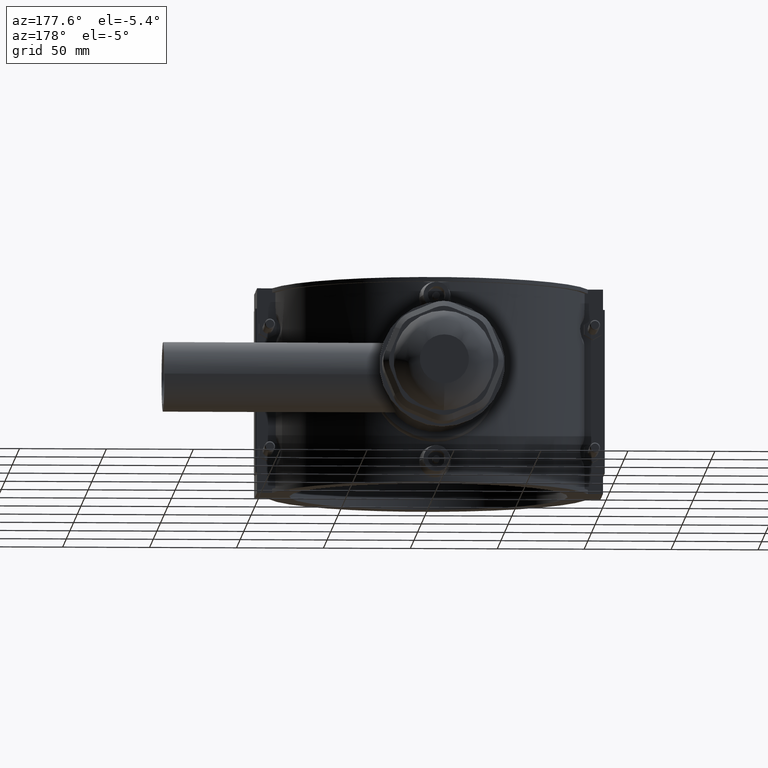
[diagram: clean part render]
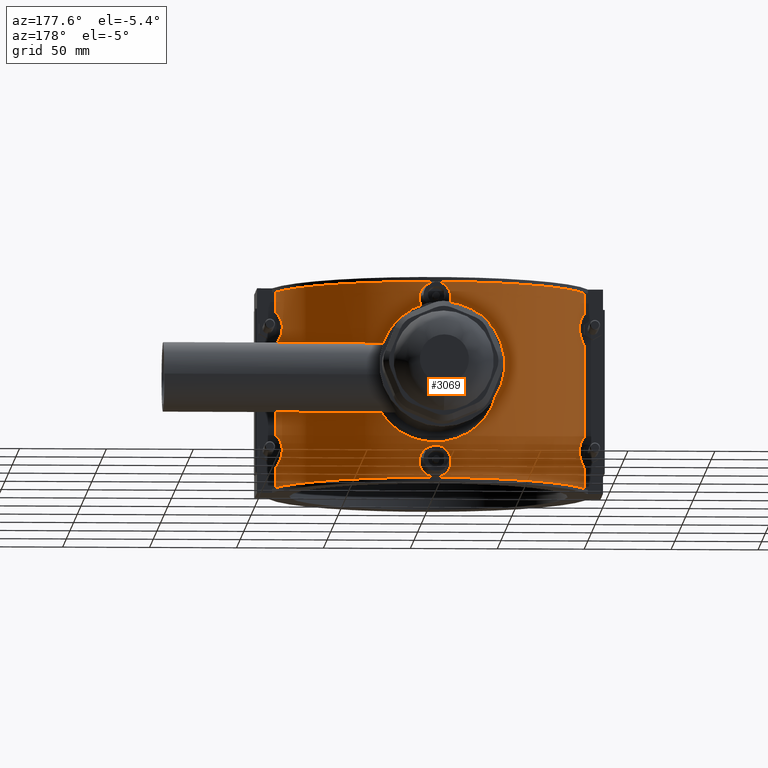
[diagram: same view with one face highlighted and labeled with its STEP entity id]
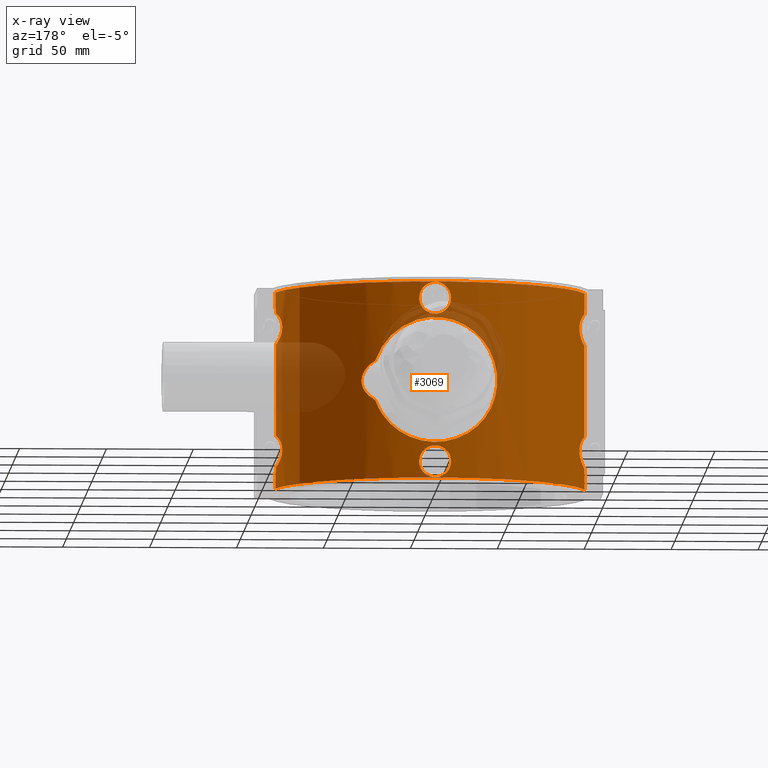
[diagram: x-ray of the same camera — body ghosted, the highlighted face saturated]
A machine part, auxiliary view. The second image highlights one B-rep face of the part: STEP entity #3069.
The next image is the same camera in x-ray: the body ghosted, the highlighted face saturated — about 13% of this face is hidden behind the body in this view.
In plain terms, the highlighted cylindrical surface (partial cylindrical patch) has radius 91.2 mm, axis along (0, 0, 1).
Its self-contained STEP definition (entity closure, byte-faithful):
#104=LINE('',#5195,#383);
#124=LINE('',#5278,#403);
#128=LINE('',#5286,#407);
#129=LINE('',#5290,#408);
#130=LINE('',#5306,#409);
#131=LINE('',#5322,#410);
#132=LINE('',#5325,#411);
#133=LINE('',#5329,#412);
#134=LINE('',#5345,#413);
#135=LINE('',#5361,#414);
#383=VECTOR('',#3716,9.43999999999998);
#403=VECTOR('',#3764,9.43999999999998);
#407=VECTOR('',#3770,9.43999999999998);
#408=VECTOR('',#3773,2.6837622247576);
#409=VECTOR('',#3774,52.5675244495152);
#410=VECTOR('',#3775,2.6837622247576);
#411=VECTOR('',#3778,9.43999999999998);
#412=VECTOR('',#3781,2.6837622247576);
#413=VECTOR('',#3782,52.5675244495152);
#414=VECTOR('',#3783,2.6837622247576);
#742=CIRCLE('',#3275,91.2);
#750=CIRCLE('',#3289,91.2);
#754=CIRCLE('',#3297,91.2);
#755=CIRCLE('',#3298,91.2);
#756=CIRCLE('',#3299,91.2);
#757=CIRCLE('',#3300,91.2);
#823=FACE_BOUND('',#1115,.T.);
#824=FACE_BOUND('',#1116,.T.);
#825=FACE_BOUND('',#1117,.T.);
#922=FACE_OUTER_BOUND('',#1114,.T.);
#1114=EDGE_LOOP('',(#2332,#2333,#2334,#2335,#2336,#2337,#2338,#2339,#2340,
#2341,#2342,#2343,#2344,#2345,#2346,#2347,#2348,#2349,#2350,#2351));
#1115=EDGE_LOOP('',(#2352,#2353));
#1116=EDGE_LOOP('',(#2354));
#1117=EDGE_LOOP('',(#2355));
#1281=B_SPLINE_CURVE_WITH_KNOTS('',3,(#4468,#4469,#4470,#4471,#4472,#4473,
#4474,#4475,#4476,#4477,#4478,#4479,#4480,#4481,#4482,#4483,#4484,#4485),
 .UNSPECIFIED.,.F.,.F.,(4,2,2,2,2,2,2,2,4),(2.16773930938593,2.74999042425556,
3.18895322151627,3.40843462014662,3.62791601877698,3.84739741740733,4.06687881603769,
4.5058416132984,5.08809272816803),.UNSPECIFIED.);
#1292=B_SPLINE_CURVE_WITH_KNOTS('',3,(#5101,#5102,#5103,#5104,#5105,#5106,
#5107,#5108,#5109,#5110,#5111,#5112,#5113,#5114,#5115,#5116,#5117,#5118,
#5119,#5120,#5121,#5122,#5123,#5124,#5125,#5126,#5127,#5128,#5129,#5130,
#5131,#5132,#5133,#5134,#5135,#5136,#5137,#5138,#5139,#5140,#5141,#5142,
#5143,#5144,#5145,#5146,#5147,#5148,#5149,#5150,#5151,#5152,#5153,#5154,
#5155,#5156,#5157,#5158,#5159,#5160,#5161,#5162),.UNSPECIFIED.,.F.,.F.,
(4,2,2,2,2,2,2,2,2,2,2,2,2,2,2,2,2,2,2,2,2,2,2,2,2,2,2,2,2,2,4),(1.12371830598308,
1.37309025133725,2.05963537700587,2.7461805026745,3.43206983416835,4.1179591656622,
4.80384849715604,5.48973782864989,6.17562716014374,6.86151649163759,7.54740582313144,
8.23329515462529,8.91984028029391,9.60638540596253,10.2929305316312,10.9794756572998,
11.6660207829684,12.352565908637,13.0391110343057,13.7256561599743,14.4115454914681,
15.097434822962,15.7833241544558,16.4692134859497,17.1551028174435,17.8409921489374,
18.5268814804312,19.2127708119251,19.8993159375937,20.5858610632623,20.8352330086165),
 .UNSPECIFIED.);
#1295=B_SPLINE_CURVE_WITH_KNOTS('',3,(#5292,#5293,#5294,#5295,#5296,#5297,
#5298,#5299,#5300,#5301,#5302,#5303,#5304),.UNSPECIFIED.,.F.,.F.,(4,1,1,
1,1,1,1,1,1,1,4),(-3.66828220203314,-3.25120389535557,-2.834125588678,-2.41704728200043,
-2.20850812866164,-1.99996897532286,-1.89569939865347,-1.79142982198407,
-1.58289066864529,-1.16581236196772,-0.74873405529015),.UNSPECIFIED.);
#1296=B_SPLINE_CURVE_WITH_KNOTS('',3,(#5308,#5309,#5310,#5311,#5312,#5313,
#5314,#5315,#5316,#5317,#5318,#5319,#5320),.UNSPECIFIED.,.F.,.F.,(4,1,1,
1,1,1,1,1,1,1,4),(-3.66828220279289,-3.25120389611031,-2.83412558942772,
-2.62558643608643,-2.52131685941578,-2.41704728274514,-2.20850812940385,
-1.99996897606255,-1.58289066937997,-1.16581236269738,-0.748734056014795),
 .UNSPECIFIED.);
#1297=B_SPLINE_CURVE_WITH_KNOTS('',3,(#5331,#5332,#5333,#5334,#5335,#5336,
#5337,#5338,#5339,#5340,#5341,#5342,#5343),.UNSPECIFIED.,.F.,.F.,(4,1,1,
1,1,1,1,1,1,1,4),(-3.66752498455638,-3.25044670413885,-2.83336842372132,
-2.41629014330378,-2.20775100309501,-1.99921186288625,-1.89494229278186,
-1.79067272267748,-1.58213358246871,-1.16505530205118,-0.747977021633643),
 .UNSPECIFIED.);
#1298=B_SPLINE_CURVE_WITH_KNOTS('',3,(#5347,#5348,#5349,#5350,#5351,#5352,
#5353,#5354,#5355,#5356,#5357,#5358,#5359),.UNSPECIFIED.,.F.,.F.,(4,1,1,
1,1,1,1,1,1,1,4),(-3.66790656687898,-3.25082827320278,-2.83374997952657,
-2.41667168585037,-2.20813253901227,-1.99959339217417,-1.89532381875512,
-1.79105424533607,-1.58251509849797,-1.16543680482177,-0.748358511145565),
 .UNSPECIFIED.);
#1299=B_SPLINE_CURVE_WITH_KNOTS('',3,(#5364,#5365,#5366,#5367,#5368,#5369,
#5370,#5371,#5372,#5373,#5374,#5375,#5376,#5377,#5378,#5379,#5380,#5381,
#5382,#5383,#5384,#5385,#5386,#5387,#5388,#5389,#5390,#5391,#5392,#5393,
#5394,#5395,#5396,#5397),.UNSPECIFIED.,.T.,.F.,(4,2,2,2,2,2,2,2,2,2,2,2,
2,2,2,2,4),(0.,0.346065054083076,0.692130108166152,1.03704234345026,1.38195457873437,
1.72686681401849,2.0717790493026,2.41784410338567,2.76390915746875,3.10957379604714,
3.45523843462554,3.80055069679235,4.14586295895917,4.49117522112599,4.8364874832928,
5.1821521218712,5.52781676044959),.UNSPECIFIED.);
#1300=B_SPLINE_CURVE_WITH_KNOTS('',3,(#5399,#5400,#5401,#5402,#5403,#5404,
#5405,#5406,#5407,#5408,#5409,#5410,#5411,#5412,#5413,#5414,#5415,#5416,
#5417,#5418,#5419,#5420,#5421,#5422,#5423,#5424,#5425,#5426,#5427,#5428,
#5429,#5430,#5431,#5432),.UNSPECIFIED.,.T.,.F.,(4,2,2,2,2,2,2,2,2,2,2,2,
2,2,2,2,4),(0.,0.346065054083076,0.692130108166152,1.03704234345026,1.38195457873438,
1.72686681401849,2.0717790493026,2.41784410338567,2.76390915746875,3.10957379604714,
3.45523843462554,3.80055069679235,4.14586295895917,4.49117522112599,4.8364874832928,
5.1821521218712,5.52781676044959),.UNSPECIFIED.);
#1337=VERTEX_POINT('',#4460);
#1338=VERTEX_POINT('',#4467);
#1404=VERTEX_POINT('',#5173);
#1405=VERTEX_POINT('',#5175);
#1412=VERTEX_POINT('',#5194);
#1432=VERTEX_POINT('',#5261);
#1433=VERTEX_POINT('',#5263);
#1437=VERTEX_POINT('',#5277);
#1440=VERTEX_POINT('',#5285);
#1441=VERTEX_POINT('',#5287);
#1442=VERTEX_POINT('',#5289);
#1443=VERTEX_POINT('',#5291);
#1444=VERTEX_POINT('',#5305);
#1445=VERTEX_POINT('',#5307);
#1446=VERTEX_POINT('',#5321);
#1447=VERTEX_POINT('',#5324);
#1448=VERTEX_POINT('',#5326);
#1449=VERTEX_POINT('',#5328);
#1450=VERTEX_POINT('',#5330);
#1451=VERTEX_POINT('',#5344);
#1452=VERTEX_POINT('',#5346);
#1453=VERTEX_POINT('',#5360);
#1454=VERTEX_POINT('',#5363);
#1455=VERTEX_POINT('',#5398);
#1632=EDGE_CURVE('',#1338,#1337,#1281,.T.);
#1731=EDGE_CURVE('',#1337,#1338,#1292,.T.);
#1738=EDGE_CURVE('',#1404,#1405,#742,.T.);
#1746=EDGE_CURVE('',#1412,#1404,#104,.T.);
#1769=EDGE_CURVE('',#1433,#1432,#750,.T.);
#1776=EDGE_CURVE('',#1433,#1437,#124,.T.);
#1780=EDGE_CURVE('',#1440,#1405,#128,.T.);
#1781=EDGE_CURVE('',#1440,#1441,#754,.T.);
#1782=EDGE_CURVE('',#1441,#1442,#129,.T.);
#1783=EDGE_CURVE('',#1443,#1442,#1295,.T.);
#1784=EDGE_CURVE('',#1443,#1444,#130,.T.);
#1785=EDGE_CURVE('',#1445,#1444,#1296,.T.);
#1786=EDGE_CURVE('',#1445,#1446,#131,.T.);
#1787=EDGE_CURVE('',#1446,#1437,#755,.T.);
#1788=EDGE_CURVE('',#1432,#1447,#132,.T.);
#1789=EDGE_CURVE('',#1447,#1448,#756,.T.);
#1790=EDGE_CURVE('',#1448,#1449,#133,.T.);
#1791=EDGE_CURVE('',#1450,#1449,#1297,.T.);
#1792=EDGE_CURVE('',#1450,#1451,#134,.T.);
#1793=EDGE_CURVE('',#1452,#1451,#1298,.T.);
#1794=EDGE_CURVE('',#1452,#1453,#135,.T.);
#1795=EDGE_CURVE('',#1453,#1412,#757,.T.);
#1796=EDGE_CURVE('',#1454,#1454,#1299,.T.);
#1797=EDGE_CURVE('',#1455,#1455,#1300,.T.);
#2332=ORIENTED_EDGE('',*,*,#1738,.T.);
#2333=ORIENTED_EDGE('',*,*,#1780,.F.);
#2334=ORIENTED_EDGE('',*,*,#1781,.T.);
#2335=ORIENTED_EDGE('',*,*,#1782,.T.);
#2336=ORIENTED_EDGE('',*,*,#1783,.F.);
#2337=ORIENTED_EDGE('',*,*,#1784,.T.);
#2338=ORIENTED_EDGE('',*,*,#1785,.F.);
#2339=ORIENTED_EDGE('',*,*,#1786,.T.);
#2340=ORIENTED_EDGE('',*,*,#1787,.T.);
#2341=ORIENTED_EDGE('',*,*,#1776,.F.);
#2342=ORIENTED_EDGE('',*,*,#1769,.T.);
#2343=ORIENTED_EDGE('',*,*,#1788,.T.);
#2344=ORIENTED_EDGE('',*,*,#1789,.T.);
#2345=ORIENTED_EDGE('',*,*,#1790,.T.);
#2346=ORIENTED_EDGE('',*,*,#1791,.F.);
#2347=ORIENTED_EDGE('',*,*,#1792,.T.);
#2348=ORIENTED_EDGE('',*,*,#1793,.F.);
#2349=ORIENTED_EDGE('',*,*,#1794,.T.);
#2350=ORIENTED_EDGE('',*,*,#1795,.T.);
#2351=ORIENTED_EDGE('',*,*,#1746,.T.);
#2352=ORIENTED_EDGE('',*,*,#1632,.T.);
#2353=ORIENTED_EDGE('',*,*,#1731,.T.);
#2354=ORIENTED_EDGE('',*,*,#1796,.T.);
#2355=ORIENTED_EDGE('',*,*,#1797,.T.);
#2983=CYLINDRICAL_SURFACE('',#3296,91.2);
#3069=ADVANCED_FACE('',(#922,#823,#824,#825),#2983,.T.);
#3275=AXIS2_PLACEMENT_3D('',#5177,#3698,#3699);
#3289=AXIS2_PLACEMENT_3D('',#5264,#3747,#3748);
#3296=AXIS2_PLACEMENT_3D('',#5284,#3768,#3769);
#3297=AXIS2_PLACEMENT_3D('',#5288,#3771,#3772);
#3298=AXIS2_PLACEMENT_3D('',#5323,#3776,#3777);
#3299=AXIS2_PLACEMENT_3D('',#5327,#3779,#3780);
#3300=AXIS2_PLACEMENT_3D('',#5362,#3784,#3785);
#3698=DIRECTION('center_axis',(0.,0.,1.));
#3699=DIRECTION('ref_axis',(1.,0.,0.));
#3716=DIRECTION('',(0.,0.,-1.));
#3747=DIRECTION('center_axis',(0.,0.,-1.));
#3748=DIRECTION('ref_axis',(1.,0.,0.));
#3764=DIRECTION('',(0.,0.,-1.));
#3768=DIRECTION('center_axis',(0.,0.,1.));
#3769=DIRECTION('ref_axis',(1.,0.,0.));
#3770=DIRECTION('',(0.,0.,-1.));
#3771=DIRECTION('center_axis',(0.,0.,-1.));
#3772=DIRECTION('ref_axis',(1.,0.,0.));
#3773=DIRECTION('',(0.,0.,1.));
#3774=DIRECTION('',(0.,0.,1.));
#3775=DIRECTION('',(0.,0.,1.));
#3776=DIRECTION('center_axis',(0.,0.,1.));
#3777=DIRECTION('ref_axis',(1.,0.,0.));
#3778=DIRECTION('',(0.,0.,-1.));
#3779=DIRECTION('center_axis',(0.,0.,1.));
#3780=DIRECTION('ref_axis',(1.,0.,0.));
#3781=DIRECTION('',(0.,0.,-1.));
#3782=DIRECTION('',(0.,0.,-1.));
#3783=DIRECTION('',(0.,0.,-1.));
#3784=DIRECTION('center_axis',(0.,0.,-1.));
#3785=DIRECTION('ref_axis',(1.,0.,0.));
#4460=CARTESIAN_POINT('',(34.1480181069357,84.565671876782,11.3979322384374));
#4467=CARTESIAN_POINT('',(34.1480181069357,84.565671876782,-11.3979322384374));
#4468=CARTESIAN_POINT('Ctrl Pts',(34.1480181010318,84.5656718755998,-11.3979322291172));
#4469=CARTESIAN_POINT('Ctrl Pts',(35.7509251939001,83.9184104135013,-10.4646658228447));
#4470=CARTESIAN_POINT('Ctrl Pts',(37.2202513829612,83.2709242500236,-9.37234060159409));
#4471=CARTESIAN_POINT('Ctrl Pts',(39.442910339603,82.2362900015375,-7.0108049044086));
#4472=CARTESIAN_POINT('Ctrl Pts',(40.3425202878254,81.7948625282587,-5.76021854635653));
#4473=CARTESIAN_POINT('Ctrl Pts',(41.2695126129152,81.328881136464,-3.68123314534437));
#4474=CARTESIAN_POINT('Ctrl Pts',(41.5106557579243,81.2055285389094,-2.95455904855121));
#4475=CARTESIAN_POINT('Ctrl Pts',(41.8309120791658,81.0410217185789,-1.47976542870611));
#4476=CARTESIAN_POINT('Ctrl Pts',(41.9099033642408,81.,-0.731604662101183));
#4477=CARTESIAN_POINT('Ctrl Pts',(41.9099033642408,81.,0.731604662101183));
#4478=CARTESIAN_POINT('Ctrl Pts',(41.8309120791658,81.0410217185789,1.47976542870611));
#4479=CARTESIAN_POINT('Ctrl Pts',(41.5106557579243,81.2055285389094,2.95455904855121));
#4480=CARTESIAN_POINT('Ctrl Pts',(41.2695126129152,81.328881136464,3.68123314534437));
#4481=CARTESIAN_POINT('Ctrl Pts',(40.3425202878254,81.7948625282587,5.76021854635653));
#4482=CARTESIAN_POINT('Ctrl Pts',(39.442910339603,82.2362900015375,7.0108049044086));
#4483=CARTESIAN_POINT('Ctrl Pts',(37.2202513829612,83.2709242500236,9.37234060159409));
#4484=CARTESIAN_POINT('Ctrl Pts',(35.7509251939001,83.9184104135013,10.4646658228447));
#4485=CARTESIAN_POINT('Ctrl Pts',(34.1480181010318,84.5656718755998,11.3979322291172));
#5101=CARTESIAN_POINT('Ctrl Pts',(34.1480181069357,84.5656718732157,11.3979322409108));
#5102=CARTESIAN_POINT('Ctrl Pts',(33.87206779495,84.677101913817,12.2246748509851));
#5103=CARTESIAN_POINT('Ctrl Pts',(33.5659141235298,84.7991672320356,13.0417652002615));
#5104=CARTESIAN_POINT('Ctrl Pts',(32.3089969863221,85.2909661590028,16.0585197891704));
#5105=CARTESIAN_POINT('Ctrl Pts',(31.165128157779,85.7211596850742,18.1737058126692));
#5106=CARTESIAN_POINT('Ctrl Pts',(28.5312190227312,86.6334344901436,22.0798174282098));
#5107=CARTESIAN_POINT('Ctrl Pts',(27.0409117744509,87.1146015822262,23.8707764709805));
#5108=CARTESIAN_POINT('Ctrl Pts',(23.8722905420791,88.0356363061712,27.0393977033523));
#5109=CARTESIAN_POINT('Ctrl Pts',(22.0820581770992,88.5089443739233,28.5295125553873));
#5110=CARTESIAN_POINT('Ctrl Pts',(18.175570321976,89.3929481051351,31.1640662251688));
#5111=CARTESIAN_POINT('Ctrl Pts',(16.0592786454413,89.8028802983963,32.3087075032088));
#5112=CARTESIAN_POINT('Ctrl Pts',(11.6311420538677,90.4830054539145,34.1536171739742));
#5113=CARTESIAN_POINT('Ctrl Pts',(9.31533034190696,90.7532620314227,34.8553518612118));
#5114=CARTESIAN_POINT('Ctrl Pts',(4.64294395213267,91.1118709070611,35.7786808619193));
#5115=CARTESIAN_POINT('Ctrl Pts',(2.28629777164616,91.2,36.));
#5116=CARTESIAN_POINT('Ctrl Pts',(-2.28629777164616,91.2,36.));
#5117=CARTESIAN_POINT('Ctrl Pts',(-4.64294395213267,91.1118709070611,35.7786808619193));
#5118=CARTESIAN_POINT('Ctrl Pts',(-9.31533034190696,90.7532620314227,34.8553518612118));
#5119=CARTESIAN_POINT('Ctrl Pts',(-11.6311420538677,90.4830054539146,34.1536171739742));
#5120=CARTESIAN_POINT('Ctrl Pts',(-16.0592786454413,89.8028802983963,32.3087075032088));
#5121=CARTESIAN_POINT('Ctrl Pts',(-18.175570321976,89.3929481051351,31.1640662251688));
#5122=CARTESIAN_POINT('Ctrl Pts',(-22.0820581770992,88.5089443739233,28.5295125553873));
#5123=CARTESIAN_POINT('Ctrl Pts',(-23.8722905420791,88.0356363061712,27.0393977033523));
#5124=CARTESIAN_POINT('Ctrl Pts',(-27.0409117744509,87.1146015822262,23.8707764709805));
#5125=CARTESIAN_POINT('Ctrl Pts',(-28.5312190227312,86.6334344901436,22.0798174282098));
#5126=CARTESIAN_POINT('Ctrl Pts',(-31.165128157779,85.7211596850742,18.1737058126692));
#5127=CARTESIAN_POINT('Ctrl Pts',(-32.308996986322,85.2909661590028,16.0585197891704));
#5128=CARTESIAN_POINT('Ctrl Pts',(-34.1530286011665,84.5694446341323,11.6326187719137));
#5129=CARTESIAN_POINT('Ctrl Pts',(-34.8546532313024,84.2783723591541,9.31790553277572));
#5130=CARTESIAN_POINT('Ctrl Pts',(-35.7782887978466,83.8904342023092,4.64588694301194));
#5131=CARTESIAN_POINT('Ctrl Pts',(-36.,83.7940332004612,2.28848375222875));
#5132=CARTESIAN_POINT('Ctrl Pts',(-36.,83.7940332004612,-2.28848375222875));
#5133=CARTESIAN_POINT('Ctrl Pts',(-35.7782887978466,83.8904342023092,-4.64588694301195));
#5134=CARTESIAN_POINT('Ctrl Pts',(-34.8546532313024,84.2783723591541,-9.31790553277572));
#5135=CARTESIAN_POINT('Ctrl Pts',(-34.1530286011665,84.5694446341323,-11.6326187719137));
#5136=CARTESIAN_POINT('Ctrl Pts',(-32.3089969863221,85.2909661590028,-16.0585197891704));
#5137=CARTESIAN_POINT('Ctrl Pts',(-31.165128157779,85.7211596850742,-18.1737058126692));
#5138=CARTESIAN_POINT('Ctrl Pts',(-28.5312190227312,86.6334344901436,-22.0798174282098));
#5139=CARTESIAN_POINT('Ctrl Pts',(-27.0409117744509,87.1146015822262,-23.8707764709805));
#5140=CARTESIAN_POINT('Ctrl Pts',(-23.8722905420791,88.0356363061712,-27.0393977033523));
#5141=CARTESIAN_POINT('Ctrl Pts',(-22.0820581770992,88.5089443739233,-28.5295125553873));
#5142=CARTESIAN_POINT('Ctrl Pts',(-18.175570321976,89.3929481051351,-31.1640662251687));
#5143=CARTESIAN_POINT('Ctrl Pts',(-16.0592786454413,89.8028802983963,-32.3087075032088));
#5144=CARTESIAN_POINT('Ctrl Pts',(-11.6311420538677,90.4830054539145,-34.1536171739742));
#5145=CARTESIAN_POINT('Ctrl Pts',(-9.31533034190696,90.7532620314227,-34.8553518612118));
#5146=CARTESIAN_POINT('Ctrl Pts',(-4.64294395213267,91.1118709070611,-35.7786808619193));
#5147=CARTESIAN_POINT('Ctrl Pts',(-2.28629777164616,91.2,-36.));
#5148=CARTESIAN_POINT('Ctrl Pts',(2.28629777164615,91.2,-36.));
#5149=CARTESIAN_POINT('Ctrl Pts',(4.64294395213266,91.1118709070611,-35.7786808619193));
#5150=CARTESIAN_POINT('Ctrl Pts',(9.31533034190694,90.7532620314227,-34.8553518612118));
#5151=CARTESIAN_POINT('Ctrl Pts',(11.6311420538677,90.4830054539146,-34.1536171739742));
#5152=CARTESIAN_POINT('Ctrl Pts',(16.0592786454413,89.8028802983963,-32.3087075032089));
#5153=CARTESIAN_POINT('Ctrl Pts',(18.1755703219759,89.3929481051352,-31.1640662251688));
#5154=CARTESIAN_POINT('Ctrl Pts',(22.0820581770992,88.5089443739233,-28.5295125553873));
#5155=CARTESIAN_POINT('Ctrl Pts',(23.8722905420791,88.0356363061712,-27.0393977033523));
#5156=CARTESIAN_POINT('Ctrl Pts',(27.0409117744509,87.1146015822262,-23.8707764709805));
#5157=CARTESIAN_POINT('Ctrl Pts',(28.5312190227312,86.6334344901436,-22.0798174282098));
#5158=CARTESIAN_POINT('Ctrl Pts',(31.165128157779,85.7211596850742,-18.1737058126692));
#5159=CARTESIAN_POINT('Ctrl Pts',(32.308996986322,85.2909661590028,-16.0585197891704));
#5160=CARTESIAN_POINT('Ctrl Pts',(33.5659141235298,84.7991672320356,-13.0417652002616));
#5161=CARTESIAN_POINT('Ctrl Pts',(33.87206779495,84.677101913817,-12.2246748509852));
#5162=CARTESIAN_POINT('Ctrl Pts',(34.1480181069357,84.5656718732157,-11.3979322409108));
#5173=CARTESIAN_POINT('',(88.9799977523039,20.,-56.64));
#5175=CARTESIAN_POINT('',(-88.9799977523038,20.,-56.64));
#5177=CARTESIAN_POINT('Origin',(0.,0.,-56.64));
#5194=CARTESIAN_POINT('',(88.9799977523039,20.0000000000001,-47.2));
#5195=CARTESIAN_POINT('',(88.9799977523039,20.,0.));
#5261=CARTESIAN_POINT('',(88.9799977523039,20.,56.64));
#5263=CARTESIAN_POINT('',(-88.9799977523038,20.,56.64));
#5264=CARTESIAN_POINT('Origin',(0.,0.,56.64));
#5277=CARTESIAN_POINT('',(-88.9799977523039,20.0000000000001,47.2));
#5278=CARTESIAN_POINT('',(-88.9799977523039,20.,0.));
#5284=CARTESIAN_POINT('Origin',(0.,0.,0.));
#5285=CARTESIAN_POINT('',(-88.9799977523039,20.0000000000001,-47.2));
#5286=CARTESIAN_POINT('',(-88.9799977523039,20.,0.));
#5287=CARTESIAN_POINT('',(-88.7493098564715,21.0000000000001,-47.2));
#5288=CARTESIAN_POINT('Origin',(0.,0.,-47.2));
#5289=CARTESIAN_POINT('',(-88.7493098564717,20.9999999999999,-44.5162377752424));
#5290=CARTESIAN_POINT('',(-88.7493098564715,21.0000000000001,0.));
#5291=CARTESIAN_POINT('',(-88.7493098564717,20.9999999999999,-26.2837622247576));
#5292=CARTESIAN_POINT('Ctrl Pts',(-88.7493098564716,20.9999999999998,-26.2837622247576));
#5293=CARTESIAN_POINT('Ctrl Pts',(-88.4149610321497,22.4130108290423,-26.7031944886741));
#5294=CARTESIAN_POINT('Ctrl Pts',(-87.6880283524837,25.1778858795364,-27.7019998941576));
#5295=CARTESIAN_POINT('Ctrl Pts',(-86.5191530163603,28.9202769505524,-29.8675123195208));
#5296=CARTESIAN_POINT('Ctrl Pts',(-85.6624055693339,31.302440321372,-32.6165160159839));
#5297=CARTESIAN_POINT('Ctrl Pts',(-85.4450160840425,31.8828234819035,-35.4034157396157));
#5298=CARTESIAN_POINT('Ctrl Pts',(-85.5804054683402,31.5211844573056,-37.1350507092045));
#5299=CARTESIAN_POINT('Ctrl Pts',(-85.8086579672526,30.8938156936346,-38.3885455088592));
#5300=CARTESIAN_POINT('Ctrl Pts',(-86.0964994057414,30.0864758921458,-39.5423015931259));
#5301=CARTESIAN_POINT('Ctrl Pts',(-86.7095183162258,28.3065863800305,-41.2859130199106));
#5302=CARTESIAN_POINT('Ctrl Pts',(-87.691542085464,25.1700252587432,-43.1022328851723));
#5303=CARTESIAN_POINT('Ctrl Pts',(-88.4149610321497,22.4130108290423,-44.096805511326));
#5304=CARTESIAN_POINT('Ctrl Pts',(-88.7493098564716,20.9999999999998,-44.5162377752424));
#5305=CARTESIAN_POINT('',(-88.7493098564717,20.9999999999999,26.2837622247576));
#5306=CARTESIAN_POINT('',(-88.7493098564715,21.0000000000001,0.));
#5307=CARTESIAN_POINT('',(-88.7493098564717,20.9999999999999,44.5162377752424));
#5308=CARTESIAN_POINT('Ctrl Pts',(-88.7493098564716,20.9999999999998,44.5162377752423));
#5309=CARTESIAN_POINT('Ctrl Pts',(-88.4149610330286,22.4130108253278,44.0968055124285));
#5310=CARTESIAN_POINT('Ctrl Pts',(-87.6915420860673,25.1700252569293,43.1022328863481));
#5311=CARTESIAN_POINT('Ctrl Pts',(-86.7095183161227,28.3065863803371,41.2859130197395));
#5312=CARTESIAN_POINT('Ctrl Pts',(-86.0964994057748,30.0864758920522,39.5423015932371));
#5313=CARTESIAN_POINT('Ctrl Pts',(-85.8086579672407,30.893815693674,38.3885455088886));
#5314=CARTESIAN_POINT('Ctrl Pts',(-85.5804054683343,31.5211844573247,37.1350507091815));
#5315=CARTESIAN_POINT('Ctrl Pts',(-85.4450160840051,31.8828234820182,35.4034157396783));
#5316=CARTESIAN_POINT('Ctrl Pts',(-85.6624055693633,31.3024403212867,32.6165160158946));
#5317=CARTESIAN_POINT('Ctrl Pts',(-86.5191530161485,28.9202769511961,29.8675123198506));
#5318=CARTESIAN_POINT('Ctrl Pts',(-87.6880283530886,25.1778858777117,27.7019998930204));
#5319=CARTESIAN_POINT('Ctrl Pts',(-88.4149610330286,22.4130108253279,26.7031944875715));
#5320=CARTESIAN_POINT('Ctrl Pts',(-88.7493098564716,20.9999999999998,26.2837622247576));
#5321=CARTESIAN_POINT('',(-88.7493098564715,21.0000000000001,47.2));
#5322=CARTESIAN_POINT('',(-88.7493098564715,21.0000000000001,0.));
#5323=CARTESIAN_POINT('Origin',(0.,0.,47.2));
#5324=CARTESIAN_POINT('',(88.9799977523039,20.0000000000001,47.2));
#5325=CARTESIAN_POINT('',(88.9799977523039,20.,0.));
#5326=CARTESIAN_POINT('',(88.7493098564715,21.0000000000001,47.2));
#5327=CARTESIAN_POINT('Origin',(0.,0.,47.2));
#5328=CARTESIAN_POINT('',(88.7493098564717,20.9999999999999,44.5162377752424));
#5329=CARTESIAN_POINT('',(88.7493098564715,21.0000000000001,0.));
#5330=CARTESIAN_POINT('',(88.7493098564717,20.9999999999999,26.2837622247576));
#5331=CARTESIAN_POINT('Ctrl Pts',(88.7493098564716,20.9999999999998,26.2837622247576));
#5332=CARTESIAN_POINT('Ctrl Pts',(88.4149611650864,22.4130102672308,26.7031943219082));
#5333=CARTESIAN_POINT('Ctrl Pts',(87.6880281127537,25.1778867747982,27.7020002347816));
#5334=CARTESIAN_POINT('Ctrl Pts',(86.5191529289145,28.9202771409652,29.8675125804049));
#5335=CARTESIAN_POINT('Ctrl Pts',(85.6624055404448,31.3024404085867,32.6165161958967));
#5336=CARTESIAN_POINT('Ctrl Pts',(85.4450160933639,31.8828234478234,35.4034157393931));
#5337=CARTESIAN_POINT('Ctrl Pts',(85.5804054544134,31.5211844964487,37.1350505984411));
#5338=CARTESIAN_POINT('Ctrl Pts',(85.8086579307241,30.8938157915859,38.3885453381319));
#5339=CARTESIAN_POINT('Ctrl Pts',(86.0964993346629,30.0864760996624,39.5423013659968));
#5340=CARTESIAN_POINT('Ctrl Pts',(86.7095182095769,28.3065866754566,41.2859127627844));
#5341=CARTESIAN_POINT('Ctrl Pts',(87.6915418476083,25.1700261338185,43.1022325374696));
#5342=CARTESIAN_POINT('Ctrl Pts',(88.4149611650864,22.4130102672308,44.0968056780918));
#5343=CARTESIAN_POINT('Ctrl Pts',(88.7493098564716,20.9999999999998,44.5162377752424));
#5344=CARTESIAN_POINT('',(88.7493098564717,20.9999999999999,-26.2837622247576));
#5345=CARTESIAN_POINT('',(88.7493098564715,21.0000000000001,0.));
#5346=CARTESIAN_POINT('',(88.7493098564717,20.9999999999999,-44.5162377752424));
#5347=CARTESIAN_POINT('Ctrl Pts',(88.7493098564716,20.9999999999998,-44.5162377752424));
#5348=CARTESIAN_POINT('Ctrl Pts',(88.4149610985497,22.4130105484257,-44.096805594623));
#5349=CARTESIAN_POINT('Ctrl Pts',(87.6880282422707,25.1778863008158,-43.0979999331056));
#5350=CARTESIAN_POINT('Ctrl Pts',(86.5191529875693,28.9202770076708,-40.9324876111118));
#5351=CARTESIAN_POINT('Ctrl Pts',(85.6624056223097,31.3024402068319,-38.1834840623287));
#5352=CARTESIAN_POINT('Ctrl Pts',(85.4450161242982,31.8828233802715,-35.3965843784854));
#5353=CARTESIAN_POINT('Ctrl Pts',(85.5804054869423,31.5211844154478,-33.6649494543955));
#5354=CARTESIAN_POINT('Ctrl Pts',(85.808657968559,30.8938156951858,-32.4114546738169));
#5355=CARTESIAN_POINT('Ctrl Pts',(86.0964993859236,30.0864759569152,-31.2576986115477));
#5356=CARTESIAN_POINT('Ctrl Pts',(86.7095182786285,28.3065864901469,-29.5140871907144));
#5357=CARTESIAN_POINT('Ctrl Pts',(87.6915419574416,25.1700257100879,-27.6977673293898));
#5358=CARTESIAN_POINT('Ctrl Pts',(88.4149610985496,22.4130105484257,-26.703194405377));
#5359=CARTESIAN_POINT('Ctrl Pts',(88.7493098564716,20.9999999999998,-26.2837622247577));
#5360=CARTESIAN_POINT('',(88.7493098564715,21.0000000000001,-47.2));
#5361=CARTESIAN_POINT('',(88.7493098564715,21.0000000000001,0.));
#5362=CARTESIAN_POINT('Origin',(0.,0.,-47.2));
#5363=CARTESIAN_POINT('',(9.18535871939005,90.7362616884569,-47.2));
#5364=CARTESIAN_POINT('Ctrl Pts',(9.18535871939005,90.7362616884569,-47.2));
#5365=CARTESIAN_POINT('Ctrl Pts',(9.18535871939005,90.7362616884569,-46.0464498197231));
#5366=CARTESIAN_POINT('Ctrl Pts',(8.95271060001911,90.7607479368476,-44.8172530720308));
#5367=CARTESIAN_POINT('Ctrl Pts',(8.00941505919708,90.8488506341557,-42.5592810057039));
#5368=CARTESIAN_POINT('Ctrl Pts',(7.29884239188916,90.9111644020812,-41.5304238181904));
#5369=CARTESIAN_POINT('Ctrl Pts',(5.66508973086934,91.0275518498036,-39.9110715030919));
#5370=CARTESIAN_POINT('Ctrl Pts',(4.63386079845111,91.0892061742376,-39.2111731607874));
#5371=CARTESIAN_POINT('Ctrl Pts',(2.37619622321046,91.1760376342106,-38.2832359769919));
#5372=CARTESIAN_POINT('Ctrl Pts',(1.14970745094704,91.2,-38.0552131257126));
#5373=CARTESIAN_POINT('Ctrl Pts',(-1.14970745094704,91.2,-38.0552131257126));
#5374=CARTESIAN_POINT('Ctrl Pts',(-2.37619622321046,91.1760376342106,-38.2832359769919));
#5375=CARTESIAN_POINT('Ctrl Pts',(-4.63386079845111,91.0892061742376,-39.2111731607874));
#5376=CARTESIAN_POINT('Ctrl Pts',(-5.66508973086934,91.0275518498036,-39.9110715030919));
#5377=CARTESIAN_POINT('Ctrl Pts',(-7.29884239188916,90.9111644020812,-41.5304238181904));
#5378=CARTESIAN_POINT('Ctrl Pts',(-8.00941505919708,90.8488506341557,-42.5592810057039));
#5379=CARTESIAN_POINT('Ctrl Pts',(-8.95271060001911,90.7607479368476,-44.8172530720308));
#5380=CARTESIAN_POINT('Ctrl Pts',(-9.18535871939005,90.7362616884569,-46.0464498197231));
#5381=CARTESIAN_POINT('Ctrl Pts',(-9.18535871939005,90.7362616884569,-48.352215461928));
#5382=CARTESIAN_POINT('Ctrl Pts',(-8.95324403729757,90.7606900825598,-49.5800841296841));
#5383=CARTESIAN_POINT('Ctrl Pts',(-8.01194907454096,90.8486219657987,-51.8360347071785));
#5384=CARTESIAN_POINT('Ctrl Pts',(-7.30284350220761,90.9108281977478,-52.864198165275));
#5385=CARTESIAN_POINT('Ctrl Pts',(-5.67049896938736,91.0272172622692,-54.4849679392758));
#5386=CARTESIAN_POINT('Ctrl Pts',(-4.63856343325106,91.0889794944252,-55.1863216568089));
#5387=CARTESIAN_POINT('Ctrl Pts',(-2.37886109944089,91.1759808049367,-56.1162391747394));
#5388=CARTESIAN_POINT('Ctrl Pts',(-1.15104087388939,91.2,-56.3447868742874));
#5389=CARTESIAN_POINT('Ctrl Pts',(1.15104087388939,91.2,-56.3447868742874));
#5390=CARTESIAN_POINT('Ctrl Pts',(2.37886109944089,91.1759808049367,-56.1162391747394));
#5391=CARTESIAN_POINT('Ctrl Pts',(4.63856343325106,91.0889794944252,-55.1863216568089));
#5392=CARTESIAN_POINT('Ctrl Pts',(5.67049896938736,91.0272172622692,-54.4849679392758));
#5393=CARTESIAN_POINT('Ctrl Pts',(7.30284350220761,90.9108281977478,-52.864198165275));
#5394=CARTESIAN_POINT('Ctrl Pts',(8.01194907454096,90.8486219657987,-51.8360347071784));
#5395=CARTESIAN_POINT('Ctrl Pts',(8.95324403729757,90.7606900825598,-49.5800841296841));
#5396=CARTESIAN_POINT('Ctrl Pts',(9.18535871939005,90.7362616884569,-48.352215461928));
#5397=CARTESIAN_POINT('Ctrl Pts',(9.18535871939005,90.7362616884569,-47.2));
#5398=CARTESIAN_POINT('',(9.18535871939005,90.7362616884569,47.2));
#5399=CARTESIAN_POINT('Ctrl Pts',(-9.18535871939005,90.7362616884569,47.2));
#5400=CARTESIAN_POINT('Ctrl Pts',(-9.18535871939005,90.7362616884569,46.0464498197231));
#5401=CARTESIAN_POINT('Ctrl Pts',(-8.95271060001911,90.7607479368476,44.8172530720308));
#5402=CARTESIAN_POINT('Ctrl Pts',(-8.00941505919708,90.8488506341557,42.5592810057039));
#5403=CARTESIAN_POINT('Ctrl Pts',(-7.29884239188916,90.9111644020812,41.5304238181904));
#5404=CARTESIAN_POINT('Ctrl Pts',(-5.66508973086935,91.0275518498036,39.9110715030919));
#5405=CARTESIAN_POINT('Ctrl Pts',(-4.63386079845111,91.0892061742376,39.2111731607874));
#5406=CARTESIAN_POINT('Ctrl Pts',(-2.37619622321046,91.1760376342106,38.2832359769919));
#5407=CARTESIAN_POINT('Ctrl Pts',(-1.14970745094704,91.2,38.0552131257126));
#5408=CARTESIAN_POINT('Ctrl Pts',(1.14970745094704,91.2,38.0552131257126));
#5409=CARTESIAN_POINT('Ctrl Pts',(2.37619622321046,91.1760376342106,38.2832359769919));
#5410=CARTESIAN_POINT('Ctrl Pts',(4.63386079845112,91.0892061742376,39.2111731607874));
#5411=CARTESIAN_POINT('Ctrl Pts',(5.66508973086935,91.0275518498036,39.9110715030919));
#5412=CARTESIAN_POINT('Ctrl Pts',(7.29884239188916,90.9111644020812,41.5304238181904));
#5413=CARTESIAN_POINT('Ctrl Pts',(8.00941505919708,90.8488506341557,42.5592810057039));
#5414=CARTESIAN_POINT('Ctrl Pts',(8.95271060001911,90.7607479368476,44.8172530720308));
#5415=CARTESIAN_POINT('Ctrl Pts',(9.18535871939005,90.7362616884569,46.0464498197231));
#5416=CARTESIAN_POINT('Ctrl Pts',(9.18535871939005,90.7362616884569,48.352215461928));
#5417=CARTESIAN_POINT('Ctrl Pts',(8.95324403729757,90.7606900825598,49.5800841296841));
#5418=CARTESIAN_POINT('Ctrl Pts',(8.01194907454095,90.8486219657987,51.8360347071784));
#5419=CARTESIAN_POINT('Ctrl Pts',(7.30284350220761,90.9108281977478,52.864198165275));
#5420=CARTESIAN_POINT('Ctrl Pts',(5.67049896938736,91.0272172622692,54.4849679392758));
#5421=CARTESIAN_POINT('Ctrl Pts',(4.63856343325106,91.0889794944252,55.1863216568089));
#5422=CARTESIAN_POINT('Ctrl Pts',(2.3788610994409,91.1759808049367,56.1162391747394));
#5423=CARTESIAN_POINT('Ctrl Pts',(1.15104087388939,91.2,56.3447868742874));
#5424=CARTESIAN_POINT('Ctrl Pts',(-1.15104087388938,91.2,56.3447868742874));
#5425=CARTESIAN_POINT('Ctrl Pts',(-2.37886109944089,91.1759808049367,56.1162391747394));
#5426=CARTESIAN_POINT('Ctrl Pts',(-4.63856343325106,91.0889794944252,55.1863216568089));
#5427=CARTESIAN_POINT('Ctrl Pts',(-5.67049896938736,91.0272172622692,54.4849679392758));
#5428=CARTESIAN_POINT('Ctrl Pts',(-7.30284350220761,90.9108281977478,52.864198165275));
#5429=CARTESIAN_POINT('Ctrl Pts',(-8.01194907454096,90.8486219657987,51.8360347071784));
#5430=CARTESIAN_POINT('Ctrl Pts',(-8.95324403729757,90.7606900825598,49.5800841296841));
#5431=CARTESIAN_POINT('Ctrl Pts',(-9.18535871939005,90.7362616884569,48.352215461928));
#5432=CARTESIAN_POINT('Ctrl Pts',(-9.18535871939005,90.7362616884569,47.2));